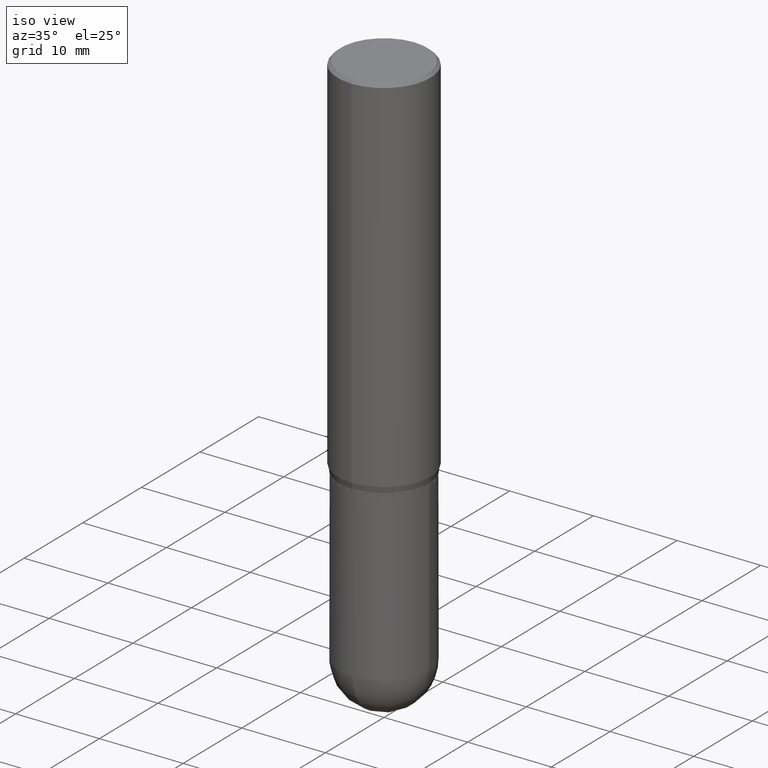
[diagram: clean part render]
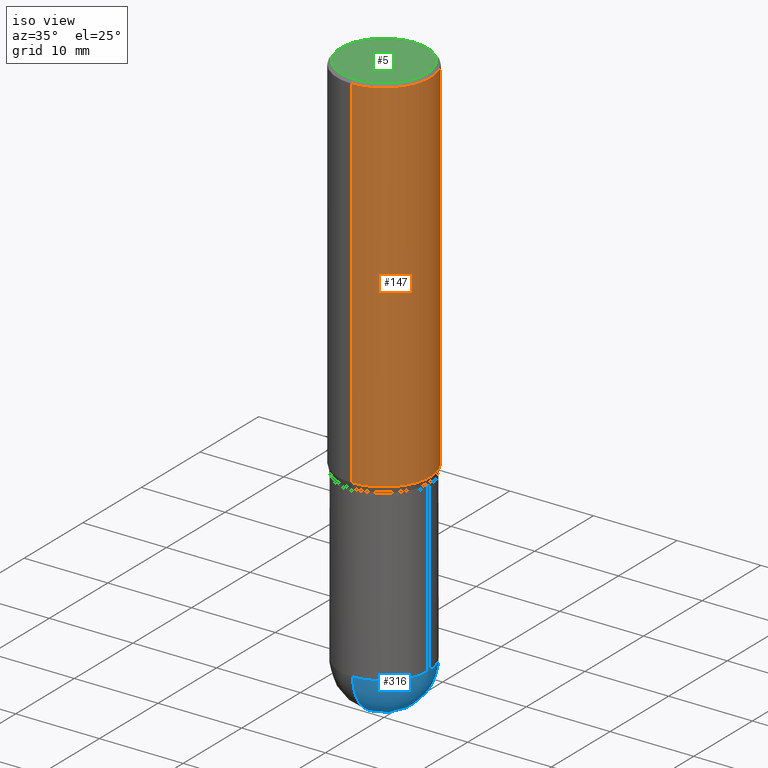
[diagram: same view with three faces highlighted in distinct colors, each labeled with its STEP entity id]
A machine part, iso view with three faces highlighted in distinct colors.
Their STEP definitions:

[orange] entity #147 — the highlighted cylindrical surface (partial cylindrical patch) has radius 5.5562 mm, axis along (-0, 0, 1).
#6 = DIRECTION ( 'NONE',  ( -2.445224538422357859E-29, 3.491831144182302259E-15, 1.000000000000000000 ) ) ;
#14 = ORIENTED_EDGE ( 'NONE', *, *, #391, .F. ) ;
#24 = EDGE_LOOP ( 'NONE', ( #262, #442, #14, #69 ) ) ;
#25 = LINE ( 'NONE', #495, #220 ) ;
#66 = DIRECTION ( 'NONE',  ( -2.445224538422357859E-29, 3.491831144182302653E-15, 1.000000000000000000 ) ) ;
#69 = ORIENTED_EDGE ( 'NONE', *, *, #122, .F. ) ;
#73 = CIRCLE ( 'NONE', #92, 0.2187500000000000000 ) ;
#82 = CARTESIAN_POINT ( 'NONE',  ( -1.527523085743870449E-15, -0.2187500000000000000, 7.638380627898786315E-16 ) ) ;
#86 = EDGE_CURVE ( 'NONE', #408, #343, #73, .T. ) ;
#92 = AXIS2_PLACEMENT_3D ( 'NONE', #472, #272, #206 ) ;
#98 = DIRECTION ( 'NONE',  ( -6.982962677686265133E-15, -1.000000000000000000, 3.492862791899308071E-15 ) ) ;
#112 = CARTESIAN_POINT ( 'NONE',  ( 0.000000000000000000, 0.000000000000000000, 0.000000000000000000 ) ) ;
#122 = EDGE_CURVE ( 'NONE', #408, #378, #475, .T. ) ;
#147 = ADVANCED_FACE ( 'NONE', ( #511 ), #476, .T. ) ;
#157 = CIRCLE ( 'NONE', #444, 0.2187500000000000000 ) ;
#181 = CARTESIAN_POINT ( 'NONE',  ( -1.527523085743828442E-15, -0.2187500000000059397, -1.710890003700962003 ) ) ;
#206 = DIRECTION ( 'NONE',  ( -6.982962677686265133E-15, -1.000000000000000000, 3.746534391310989557E-15 ) ) ;
#212 = DIRECTION ( 'NONE',  ( -2.445224538422357859E-29, 3.491831144182302259E-15, 1.000000000000000000 ) ) ;
#217 = AXIS2_PLACEMENT_3D ( 'NONE', #112, #6, #314 ) ;
#220 = VECTOR ( 'NONE', #66, 39.37007874015748143 ) ;
#262 = ORIENTED_EDGE ( 'NONE', *, *, #86, .T. ) ;
#272 = DIRECTION ( 'NONE',  ( -2.445224538422357859E-29, 3.491831144182302259E-15, 1.000000000000000000 ) ) ;
#314 = DIRECTION ( 'NONE',  ( -6.982962677686265133E-15, -1.000000000000000000, 3.491831144182302259E-15 ) ) ;
#343 = VERTEX_POINT ( 'NONE', #372 ) ;
#361 = VECTOR ( 'NONE', #396, 39.37007874015748143 ) ;
#372 = CARTESIAN_POINT ( 'NONE',  ( 1.554312234475260769E-15, 0.2187499999999940603, -1.710890003700963558 ) ) ;
#378 = VERTEX_POINT ( 'NONE', #485 ) ;
#379 = CARTESIAN_POINT ( 'NONE',  ( 3.667836807633575149E-31, -5.237746716273508633E-17, -0.01500000000000015730 ) ) ;
#391 = EDGE_CURVE ( 'NONE', #378, #419, #157, .T. ) ;
#396 = DIRECTION ( 'NONE',  ( -2.445224538422357859E-29, 3.491831144182302653E-15, 1.000000000000000000 ) ) ;
#402 = EDGE_CURVE ( 'NONE', #343, #419, #25, .T. ) ;
#408 = VERTEX_POINT ( 'NONE', #181 ) ;
#417 = CARTESIAN_POINT ( 'NONE',  ( 1.554312234475260966E-15, 0.2187499999999999167, -0.01500000000000092232 ) ) ;
#419 = VERTEX_POINT ( 'NONE', #417 ) ;
#442 = ORIENTED_EDGE ( 'NONE', *, *, #402, .T. ) ;
#444 = AXIS2_PLACEMENT_3D ( 'NONE', #379, #212, #98 ) ;
#472 = CARTESIAN_POINT ( 'NONE',  ( 4.183510219591112166E-29, -5.974138999193196321E-15, -1.710890003700962669 ) ) ;
#475 = LINE ( 'NONE', #82, #361 ) ;
#476 = CYLINDRICAL_SURFACE ( 'NONE', #217, 0.2187500000000000000 ) ;
#485 = CARTESIAN_POINT ( 'NONE',  ( -1.527523085743870054E-15, -0.2187500000000000555, -0.01499999999999939403 ) ) ;
#495 = CARTESIAN_POINT ( 'NONE',  ( 1.554312234475218762E-15, 0.2187500000000000000, -7.638380627898786315E-16 ) ) ;
#511 = FACE_OUTER_BOUND ( 'NONE', #24, .T. ) ;

[blue] entity #316 — the highlighted spherical surface has radius 5.3581 mm.
#10 = EDGE_CURVE ( 'NONE', #53, #455, #397, .T. ) ;
#32 = CARTESIAN_POINT ( 'NONE',  ( 6.209167572344372023E-29, -8.865045693389689499E-15, -2.539050000000000473 ) ) ;
#34 = DIRECTION ( 'NONE',  ( -2.445468806185136597E-29, 3.491481338843145583E-15, 1.000000000000000000 ) ) ;
#52 = DIRECTION ( 'NONE',  ( -1.000000000000000000, 7.105427357601001070E-15, -4.926315508542082329E-29 ) ) ;
#53 = VERTEX_POINT ( 'NONE', #103 ) ;
#68 = ORIENTED_EDGE ( 'NONE', *, *, #246, .F. ) ;
#79 = VERTEX_POINT ( 'NONE', #364 ) ;
#103 = CARTESIAN_POINT ( 'NONE',  ( -1.498889901085869604E-15, -0.2109500000000089637, -2.539049999999999585 ) ) ;
#137 = ORIENTED_EDGE ( 'NONE', *, *, #184, .F. ) ;
#143 = DIRECTION ( 'NONE',  ( 1.000000000000000000, -6.982962677686265133E-15, 0.000000000000000000 ) ) ;
#164 = FACE_OUTER_BOUND ( 'NONE', #301, .T. ) ;
#169 = DIRECTION ( 'NONE',  ( 1.000000000000000000, -6.982962677686265922E-15, 4.883557194083112340E-29 ) ) ;
#171 = AXIS2_PLACEMENT_3D ( 'NONE', #291, #52, #329 ) ;
#184 = EDGE_CURVE ( 'NONE', #455, #247, #203, .T. ) ;
#195 = AXIS2_PLACEMENT_3D ( 'NONE', #32, #34, #143 ) ;
#203 = CIRCLE ( 'NONE', #486, 0.2109500000000000541 ) ;
#235 = CARTESIAN_POINT ( 'NONE',  ( 0.2109500000000000541, -8.960624995040515044E-15, -2.539050000000000473 ) ) ;
#237 = DIRECTION ( 'NONE',  ( 1.000000000000000000, -6.982962677686265133E-15, 0.000000000000000000 ) ) ;
#246 = EDGE_CURVE ( 'NONE', #79, #53, #367, .T. ) ;
#247 = VERTEX_POINT ( 'NONE', #325 ) ;
#291 = CARTESIAN_POINT ( 'NONE',  ( 6.191127839474132236E-29, -8.890879617617701491E-15, -2.539049999999999585 ) ) ;
#295 = CARTESIAN_POINT ( 'NONE',  ( 6.191127839474132236E-29, -8.890879617617701491E-15, -2.539049999999999585 ) ) ;
#301 = EDGE_LOOP ( 'NONE', ( #68, #450, #137, #304 ) ) ;
#304 = ORIENTED_EDGE ( 'NONE', *, *, #10, .F. ) ;
#316 = ADVANCED_FACE ( 'NONE', ( #164 ), #338, .T. ) ;
#317 = CARTESIAN_POINT ( 'NONE',  ( 6.209167572344372023E-29, -8.865045693389689499E-15, -2.539050000000000473 ) ) ;
#325 = CARTESIAN_POINT ( 'NONE',  ( 1.473055976857980082E-15, 0.2109499999999912001, -2.539050000000000917 ) ) ;
#326 = CARTESIAN_POINT ( 'NONE',  ( 6.191127839474132236E-29, -8.890879617617701491E-15, -2.539049999999999585 ) ) ;
#329 = DIRECTION ( 'NONE',  ( -7.105427357601001070E-15, -1.000000000000000000, 0.000000000000000000 ) ) ;
#332 = DIRECTION ( 'NONE',  ( 6.982962677686265922E-15, 1.000000000000000000, 0.000000000000000000 ) ) ;
#338 = SPHERICAL_SURFACE ( 'NONE', #498, 0.2109500000000001096 ) ;
#352 = EDGE_CURVE ( 'NONE', #79, #247, #377, .T. ) ;
#364 = CARTESIAN_POINT ( 'NONE',  ( 6.716019350574006308E-29, -9.614490643932656644E-15, -2.750000000000000000 ) ) ;
#367 = CIRCLE ( 'NONE', #171, 0.2109500000000001096 ) ;
#377 = CIRCLE ( 'NONE', #406, 0.2109500000000001096 ) ;
#397 = CIRCLE ( 'NONE', #195, 0.2109500000000000541 ) ;
#406 = AXIS2_PLACEMENT_3D ( 'NONE', #326, #169, #332 ) ;
#450 = ORIENTED_EDGE ( 'NONE', *, *, #352, .T. ) ;
#452 = DIRECTION ( 'NONE',  ( 6.982962677686265133E-15, 1.000000000000000000, -2.590043132177541277E-15 ) ) ;
#455 = VERTEX_POINT ( 'NONE', #235 ) ;
#470 = DIRECTION ( 'NONE',  ( -2.445468806185136597E-29, 3.491481338843145583E-15, 1.000000000000000000 ) ) ;
#486 = AXIS2_PLACEMENT_3D ( 'NONE', #317, #470, #237 ) ;
#493 = DIRECTION ( 'NONE',  ( -1.000000000000000000, 6.982962677686265133E-15, -4.883557194083112340E-29 ) ) ;
#498 = AXIS2_PLACEMENT_3D ( 'NONE', #295, #493, #452 ) ;

[green] entity #5 — the highlighted planar face has unit normal (0, -0, -1).
#5 = ADVANCED_FACE ( 'NONE', ( #151 ), #233, .F. ) ;
#16 = CARTESIAN_POINT ( 'NONE',  ( 3.841295513378218841E-45, -5.485449330667966736E-31, -1.570937741307224074E-16 ) ) ;
#23 = CARTESIAN_POINT ( 'NONE',  ( -1.449280202029235538E-15, -0.2037499999999999867, 5.543668214964218588E-16 ) ) ;
#29 = VERTEX_POINT ( 'NONE', #23 ) ;
#36 = EDGE_LOOP ( 'NONE', ( #178, #93 ) ) ;
#93 = ORIENTED_EDGE ( 'NONE', *, *, #242, .T. ) ;
#110 = CIRCLE ( 'NONE', #275, 0.2037499999999999867 ) ;
#127 = CIRCLE ( 'NONE', #162, 0.2037499999999999867 ) ;
#141 = EDGE_CURVE ( 'NONE', #502, #29, #127, .T. ) ;
#151 = FACE_OUTER_BOUND ( 'NONE', #36, .T. ) ;
#161 = DIRECTION ( 'NONE',  ( -2.445224538422357859E-29, 3.491831144182302259E-15, 1.000000000000000000 ) ) ;
#162 = AXIS2_PLACEMENT_3D ( 'NONE', #273, #161, #239 ) ;
#178 = ORIENTED_EDGE ( 'NONE', *, *, #141, .T. ) ;
#215 = DIRECTION ( 'NONE',  ( -2.445224538422357859E-29, 3.491831144182302259E-15, 1.000000000000000000 ) ) ;
#230 = DIRECTION ( 'NONE',  ( 6.982962677686265922E-15, 1.000000000000000000, -3.491831144182302653E-15 ) ) ;
#233 = PLANE ( 'NONE',  #412 ) ;
#239 = DIRECTION ( 'NONE',  ( -6.982962677686265133E-15, -1.000000000000000000, 3.491831144182301864E-15 ) ) ;
#242 = EDGE_CURVE ( 'NONE', #29, #502, #110, .T. ) ;
#273 = CARTESIAN_POINT ( 'NONE',  ( 3.841295513378218841E-45, -5.485449330667966736E-31, -1.570937741307224074E-16 ) ) ;
#275 = AXIS2_PLACEMENT_3D ( 'NONE', #16, #215, #368 ) ;
#299 = CARTESIAN_POINT ( 'NONE',  ( 1.422778645578576487E-15, 0.2037499999999999867, -7.900074826925052850E-16 ) ) ;
#368 = DIRECTION ( 'NONE',  ( -6.982962677686265133E-15, -1.000000000000000000, 3.491831144182301864E-15 ) ) ;
#384 = DIRECTION ( 'NONE',  ( 2.445224538422357299E-29, -3.491831144182302653E-15, -1.000000000000000000 ) ) ;
#412 = AXIS2_PLACEMENT_3D ( 'NONE', #299, #384, #230 ) ;
#501 = CARTESIAN_POINT ( 'NONE',  ( 1.475150865661223764E-15, 0.2037499999999999867, -8.685543697578665257E-16 ) ) ;
#502 = VERTEX_POINT ( 'NONE', #501 ) ;